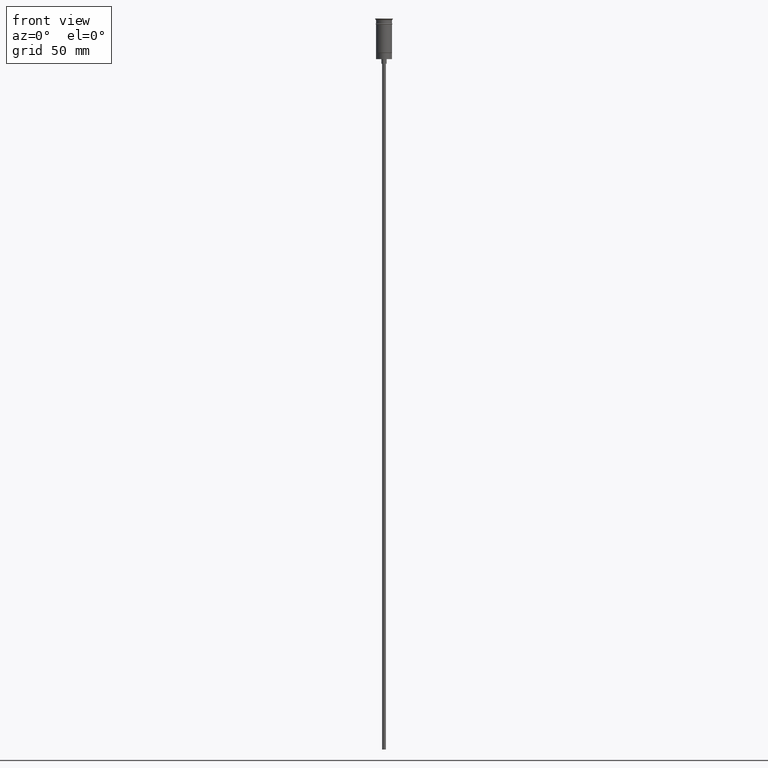
[diagram: clean part render]
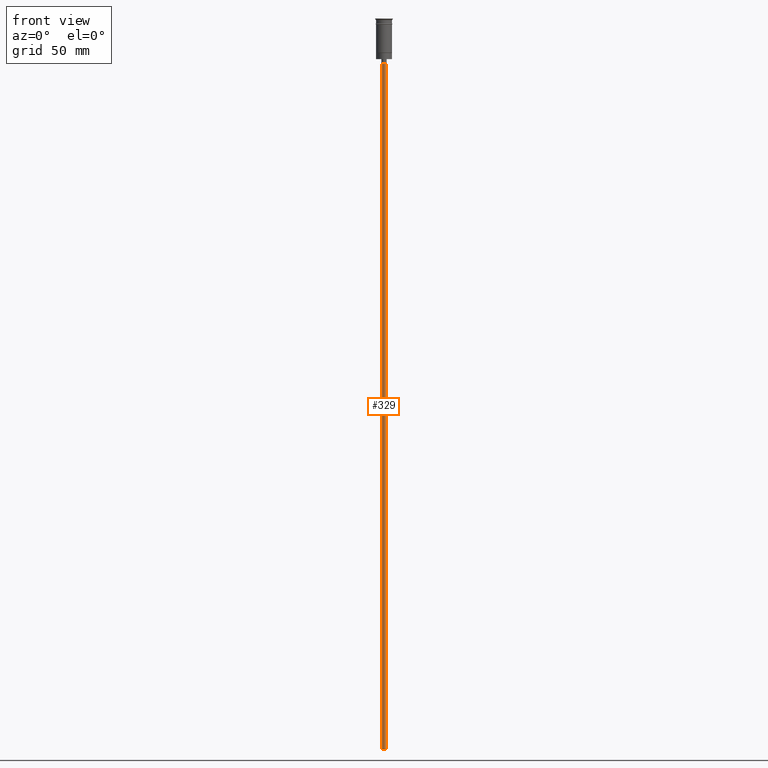
[diagram: same view with one face highlighted and labeled with its STEP entity id]
A machine part, front view. The second image highlights one B-rep face of the part: STEP entity #329.
In plain terms, the highlighted cylindrical surface (edge-blend (fillet) strip) has radius 1.25 mm, axis along (-0, -0, 1).
Its self-contained STEP definition (entity closure, byte-faithful):
#19 = VERTEX_POINT ( 'NONE', #239 ) ;
#43 = CARTESIAN_POINT ( 'NONE',  ( -1.250000000000000000, 1.530808498934191571E-16, -476.5000000000000568 ) ) ;
#58 = ORIENTED_EDGE ( 'NONE', *, *, #386, .F. ) ;
#80 = EDGE_LOOP ( 'NONE', ( #1364, #58, #455, #245 ) ) ;
#81 = DIRECTION ( 'NONE',  ( 0.000000000000000000, 0.000000000000000000, -1.000000000000000000 ) ) ;
#117 = CARTESIAN_POINT ( 'NONE',  ( 1.250000000000000000, 0.000000000000000000, -29.50000000000000000 ) ) ;
#132 = VERTEX_POINT ( 'NONE', #43 ) ;
#157 = CIRCLE ( 'NONE', #627, 1.250000000000000000 ) ;
#239 = CARTESIAN_POINT ( 'NONE',  ( -1.250000000000000000, 1.530808498934191571E-16, -29.50000000000000000 ) ) ;
#245 = ORIENTED_EDGE ( 'NONE', *, *, #711, .T. ) ;
#253 = DIRECTION ( 'NONE',  ( 0.000000000000000000, 0.000000000000000000, -1.000000000000000000 ) ) ;
#329 = ADVANCED_FACE ( 'NONE', ( #818 ), #600, .T. ) ;
#339 = DIRECTION ( 'NONE',  ( -0.000000000000000000, -0.000000000000000000, 1.000000000000000000 ) ) ;
#386 = EDGE_CURVE ( 'NONE', #827, #132, #753, .T. ) ;
#413 = LINE ( 'NONE', #1390, #445 ) ;
#437 = CARTESIAN_POINT ( 'NONE',  ( 0.000000000000000000, 0.000000000000000000, -29.50000000000000000 ) ) ;
#445 = VECTOR ( 'NONE', #538, 1000.000000000000000 ) ;
#455 = ORIENTED_EDGE ( 'NONE', *, *, #1135, .T. ) ;
#466 = AXIS2_PLACEMENT_3D ( 'NONE', #977, #253, #509 ) ;
#509 = DIRECTION ( 'NONE',  ( -1.000000000000000000, 0.000000000000000000, 0.000000000000000000 ) ) ;
#538 = DIRECTION ( 'NONE',  ( -0.000000000000000000, -0.000000000000000000, 1.000000000000000000 ) ) ;
#590 = DIRECTION ( 'NONE',  ( -0.000000000000000000, -0.000000000000000000, 1.000000000000000000 ) ) ;
#600 = CYLINDRICAL_SURFACE ( 'NONE', #850, 1.250000000000000000 ) ;
#621 = CARTESIAN_POINT ( 'NONE',  ( 1.250000000000000000, 0.000000000000000000, -476.5000000000000568 ) ) ;
#627 = AXIS2_PLACEMENT_3D ( 'NONE', #437, #81, #940 ) ;
#656 = VECTOR ( 'NONE', #339, 1000.000000000000000 ) ;
#711 = EDGE_CURVE ( 'NONE', #821, #19, #157, .T. ) ;
#753 = CIRCLE ( 'NONE', #466, 1.250000000000000000 ) ;
#818 = FACE_OUTER_BOUND ( 'NONE', #80, .T. ) ;
#821 = VERTEX_POINT ( 'NONE', #117 ) ;
#827 = VERTEX_POINT ( 'NONE', #621 ) ;
#850 = AXIS2_PLACEMENT_3D ( 'NONE', #1186, #590, #941 ) ;
#940 = DIRECTION ( 'NONE',  ( -1.000000000000000000, 0.000000000000000000, 0.000000000000000000 ) ) ;
#941 = DIRECTION ( 'NONE',  ( 1.000000000000000000, 0.000000000000000000, 0.000000000000000000 ) ) ;
#977 = CARTESIAN_POINT ( 'NONE',  ( 0.000000000000000000, 0.000000000000000000, -476.5000000000000568 ) ) ;
#1098 = CARTESIAN_POINT ( 'NONE',  ( 1.250000000000000000, 0.000000000000000000, -476.5000000000000568 ) ) ;
#1135 = EDGE_CURVE ( 'NONE', #827, #821, #1176, .T. ) ;
#1176 = LINE ( 'NONE', #1098, #656 ) ;
#1186 = CARTESIAN_POINT ( 'NONE',  ( 0.000000000000000000, 0.000000000000000000, -476.5000000000000568 ) ) ;
#1364 = ORIENTED_EDGE ( 'NONE', *, *, #1448, .F. ) ;
#1390 = CARTESIAN_POINT ( 'NONE',  ( -1.250000000000000000, 1.530808498934191571E-16, -476.5000000000000568 ) ) ;
#1448 = EDGE_CURVE ( 'NONE', #132, #19, #413, .T. ) ;